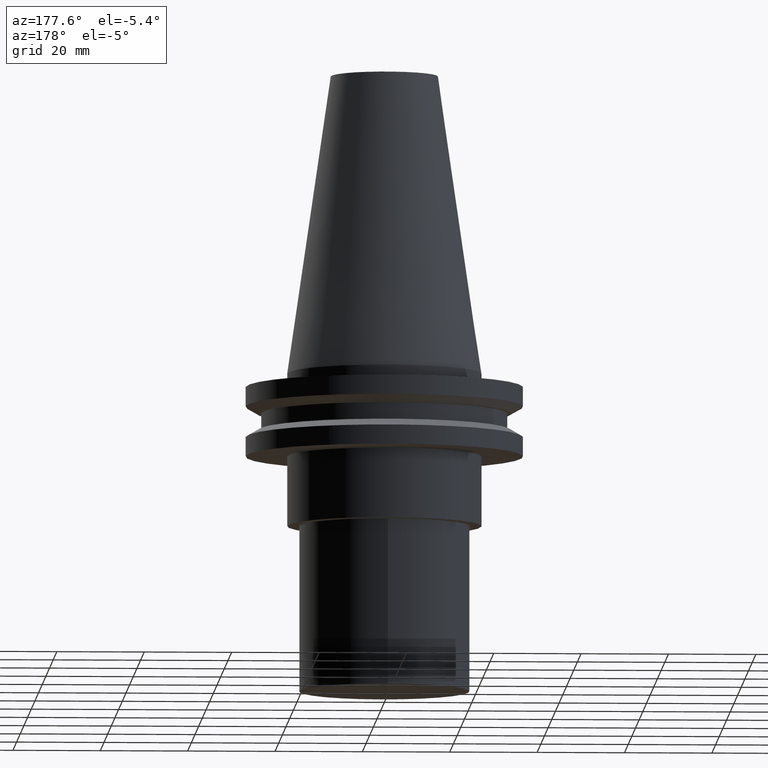
[diagram: clean part render]
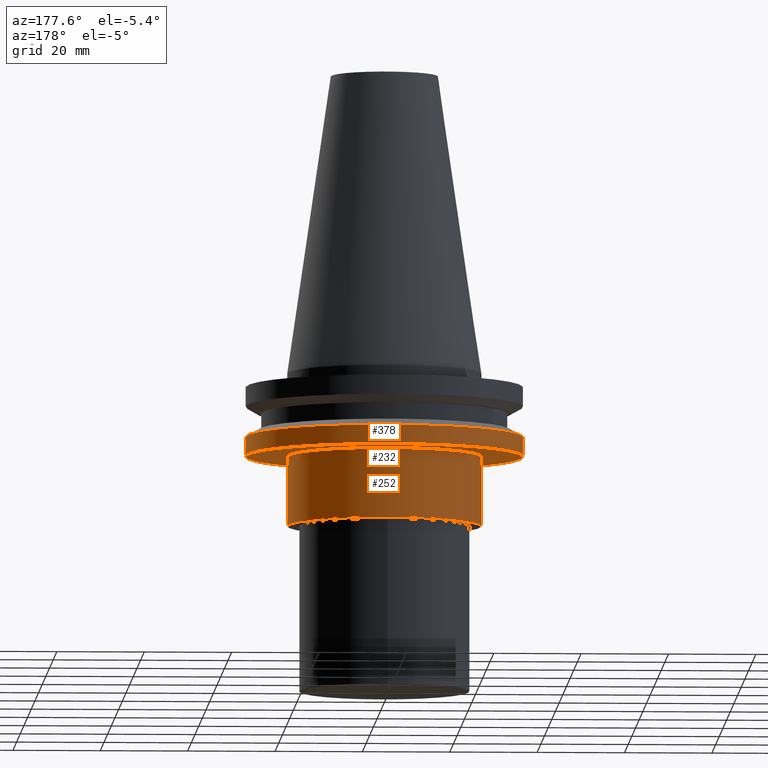
[diagram: same view with one multi-face feature highlighted, each face labeled with its STEP entity id]
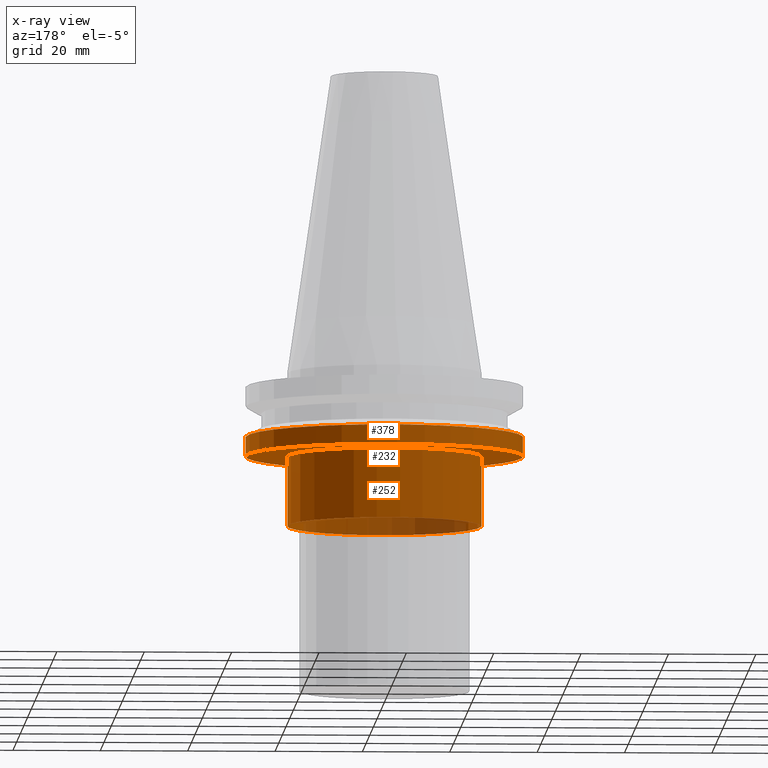
[diagram: x-ray of the same camera — body ghosted, the whole feature saturated]
A machine part, auxiliary view. The highlighted faces form ONE feature: a stepped (counterbored) hole: 2 coaxial cylindrical walls of radii 22.225 -> 31.75 mm joined by 1 annular planar shoulder face(s). The faces share edges in the B-rep.
The next image is the same camera in x-ray: the body ghosted and the whole hole feature saturated, so the bore chain is visible through the body.
Their STEP definitions:
[1] entity #378 (Cylinder):
#1 = CIRCLE ( 'NONE', #285, 31.74999999999999289 ) ;
#3 = AXIS2_PLACEMENT_3D ( 'NONE', #68, #358, #189 ) ;
#8 = EDGE_CURVE ( 'NONE', #90, #90, #22, .T. ) ;
#20 = DIRECTION ( 'NONE',  ( 1.000000000000000000, 0.000000000000000000, 0.000000000000000000 ) ) ;
#22 = CIRCLE ( 'NONE', #43, 31.75000000000000000 ) ;
#26 = VERTEX_POINT ( 'NONE', #305 ) ;
#36 = EDGE_LOOP ( 'NONE', ( #47 ) ) ;
#43 = AXIS2_PLACEMENT_3D ( 'NONE', #229, #55, #353 ) ;
#47 = ORIENTED_EDGE ( 'NONE', *, *, #303, .T. ) ;
#55 = DIRECTION ( 'NONE',  ( -0.000000000000000000, -0.000000000000000000, 1.000000000000000000 ) ) ;
#68 = CARTESIAN_POINT ( 'NONE',  ( 0.000000000000000000, 0.000000000000000000, 68.25000000000000000 ) ) ;
#77 = CYLINDRICAL_SURFACE ( 'NONE', #3, 31.75000000000000000 ) ;
#90 = VERTEX_POINT ( 'NONE', #165 ) ;
#135 = EDGE_LOOP ( 'NONE', ( #379 ) ) ;
#140 = DIRECTION ( 'NONE',  ( -0.000000000000000000, -0.000000000000000000, 1.000000000000000000 ) ) ;
#165 = CARTESIAN_POINT ( 'NONE',  ( 31.75000000000000000, 0.000000000000000000, -14.65472339340266572 ) ) ;
#189 = DIRECTION ( 'NONE',  ( 1.000000000000000000, 0.000000000000000000, 0.000000000000000000 ) ) ;
#202 = FACE_OUTER_BOUND ( 'NONE', #135, .T. ) ;
#229 = CARTESIAN_POINT ( 'NONE',  ( 0.000000000000000000, 0.000000000000000000, -14.65472339340266572 ) ) ;
#231 = CARTESIAN_POINT ( 'NONE',  ( 0.000000000000000000, 0.000000000000000000, -19.04999999999999716 ) ) ;
#285 = AXIS2_PLACEMENT_3D ( 'NONE', #231, #140, #20 ) ;
#303 = EDGE_CURVE ( 'NONE', #26, #26, #1, .T. ) ;
#305 = CARTESIAN_POINT ( 'NONE',  ( 31.74999999999999289, 0.000000000000000000, -19.04999999999999716 ) ) ;
#327 = FACE_OUTER_BOUND ( 'NONE', #36, .T. ) ;
#353 = DIRECTION ( 'NONE',  ( 1.000000000000000000, 0.000000000000000000, 0.000000000000000000 ) ) ;
#358 = DIRECTION ( 'NONE',  ( -0.000000000000000000, -0.000000000000000000, 1.000000000000000000 ) ) ;
#378 = ADVANCED_FACE ( 'NONE', ( #202, #327 ), #77, .T. ) ;
#379 = ORIENTED_EDGE ( 'NONE', *, *, #8, .F. ) ;
[2] entity #252 (Cylinder):
#10 = AXIS2_PLACEMENT_3D ( 'NONE', #80, #238, #266 ) ;
#32 = VERTEX_POINT ( 'NONE', #221 ) ;
#48 = DIRECTION ( 'NONE',  ( -0.000000000000000000, -0.000000000000000000, 1.000000000000000000 ) ) ;
#53 = DIRECTION ( 'NONE',  ( 1.000000000000000000, 0.000000000000000000, 0.000000000000000000 ) ) ;
#80 = CARTESIAN_POINT ( 'NONE',  ( 0.000000000000000000, 0.000000000000000000, -19.04999999999999716 ) ) ;
#81 = EDGE_LOOP ( 'NONE', ( #381 ) ) ;
#86 = CYLINDRICAL_SURFACE ( 'NONE', #101, 22.22500000000000142 ) ;
#101 = AXIS2_PLACEMENT_3D ( 'NONE', #209, #325, #290 ) ;
#111 = EDGE_LOOP ( 'NONE', ( #145 ) ) ;
#128 = VERTEX_POINT ( 'NONE', #156 ) ;
#145 = ORIENTED_EDGE ( 'NONE', *, *, #268, .F. ) ;
#156 = CARTESIAN_POINT ( 'NONE',  ( 22.22499999999999787, 0.000000000000000000, -35.04999999999999716 ) ) ;
#182 = AXIS2_PLACEMENT_3D ( 'NONE', #321, #48, #53 ) ;
#191 = CIRCLE ( 'NONE', #10, 22.22500000000000142 ) ;
#209 = CARTESIAN_POINT ( 'NONE',  ( 0.000000000000000000, 0.000000000000000000, 68.25000000000000000 ) ) ;
#221 = CARTESIAN_POINT ( 'NONE',  ( 22.22500000000000142, 0.000000000000000000, -19.04999999999999716 ) ) ;
#238 = DIRECTION ( 'NONE',  ( -0.000000000000000000, -0.000000000000000000, 1.000000000000000000 ) ) ;
#252 = ADVANCED_FACE ( 'NONE', ( #352, #377 ), #86, .T. ) ;
#266 = DIRECTION ( 'NONE',  ( 1.000000000000000000, 0.000000000000000000, 0.000000000000000000 ) ) ;
#268 = EDGE_CURVE ( 'NONE', #32, #32, #191, .T. ) ;
#282 = EDGE_CURVE ( 'NONE', #128, #128, #300, .T. ) ;
#290 = DIRECTION ( 'NONE',  ( 1.000000000000000000, 0.000000000000000000, 0.000000000000000000 ) ) ;
#300 = CIRCLE ( 'NONE', #182, 22.22499999999999787 ) ;
#321 = CARTESIAN_POINT ( 'NONE',  ( 0.000000000000000000, 0.000000000000000000, -35.04999999999999716 ) ) ;
#325 = DIRECTION ( 'NONE',  ( -0.000000000000000000, -0.000000000000000000, 1.000000000000000000 ) ) ;
#352 = FACE_OUTER_BOUND ( 'NONE', #111, .T. ) ;
#377 = FACE_OUTER_BOUND ( 'NONE', #81, .T. ) ;
#381 = ORIENTED_EDGE ( 'NONE', *, *, #282, .T. ) ;
[3] entity #232 (Plane):
#1 = CIRCLE ( 'NONE', #285, 31.74999999999999289 ) ;
#9 = FACE_BOUND ( 'NONE', #70, .T. ) ;
#10 = AXIS2_PLACEMENT_3D ( 'NONE', #80, #238, #266 ) ;
#12 = PLANE ( 'NONE',  #259 ) ;
#20 = DIRECTION ( 'NONE',  ( 1.000000000000000000, 0.000000000000000000, 0.000000000000000000 ) ) ;
#26 = VERTEX_POINT ( 'NONE', #305 ) ;
#32 = VERTEX_POINT ( 'NONE', #221 ) ;
#70 = EDGE_LOOP ( 'NONE', ( #223 ) ) ;
#80 = CARTESIAN_POINT ( 'NONE',  ( 0.000000000000000000, 0.000000000000000000, -19.04999999999999716 ) ) ;
#140 = DIRECTION ( 'NONE',  ( -0.000000000000000000, -0.000000000000000000, 1.000000000000000000 ) ) ;
#144 = FACE_OUTER_BOUND ( 'NONE', #342, .T. ) ;
#191 = CIRCLE ( 'NONE', #10, 22.22500000000000142 ) ;
#221 = CARTESIAN_POINT ( 'NONE',  ( 22.22500000000000142, 0.000000000000000000, -19.04999999999999716 ) ) ;
#223 = ORIENTED_EDGE ( 'NONE', *, *, #268, .T. ) ;
#231 = CARTESIAN_POINT ( 'NONE',  ( 0.000000000000000000, 0.000000000000000000, -19.04999999999999716 ) ) ;
#232 = ADVANCED_FACE ( 'NONE', ( #144, #9 ), #12, .F. ) ;
#238 = DIRECTION ( 'NONE',  ( -0.000000000000000000, -0.000000000000000000, 1.000000000000000000 ) ) ;
#239 = ORIENTED_EDGE ( 'NONE', *, *, #303, .F. ) ;
#259 = AXIS2_PLACEMENT_3D ( 'NONE', #264, #296, #348 ) ;
#264 = CARTESIAN_POINT ( 'NONE',  ( 0.000000000000000000, 31.74999999999999289, -19.04999999999999716 ) ) ;
#266 = DIRECTION ( 'NONE',  ( 1.000000000000000000, 0.000000000000000000, 0.000000000000000000 ) ) ;
#268 = EDGE_CURVE ( 'NONE', #32, #32, #191, .T. ) ;
#285 = AXIS2_PLACEMENT_3D ( 'NONE', #231, #140, #20 ) ;
#296 = DIRECTION ( 'NONE',  ( 0.000000000000000000, -0.000000000000000000, 1.000000000000000000 ) ) ;
#303 = EDGE_CURVE ( 'NONE', #26, #26, #1, .T. ) ;
#305 = CARTESIAN_POINT ( 'NONE',  ( 31.74999999999999289, 0.000000000000000000, -19.04999999999999716 ) ) ;
#342 = EDGE_LOOP ( 'NONE', ( #239 ) ) ;
#348 = DIRECTION ( 'NONE',  ( 1.000000000000000000, 0.000000000000000000, 0.000000000000000000 ) ) ;